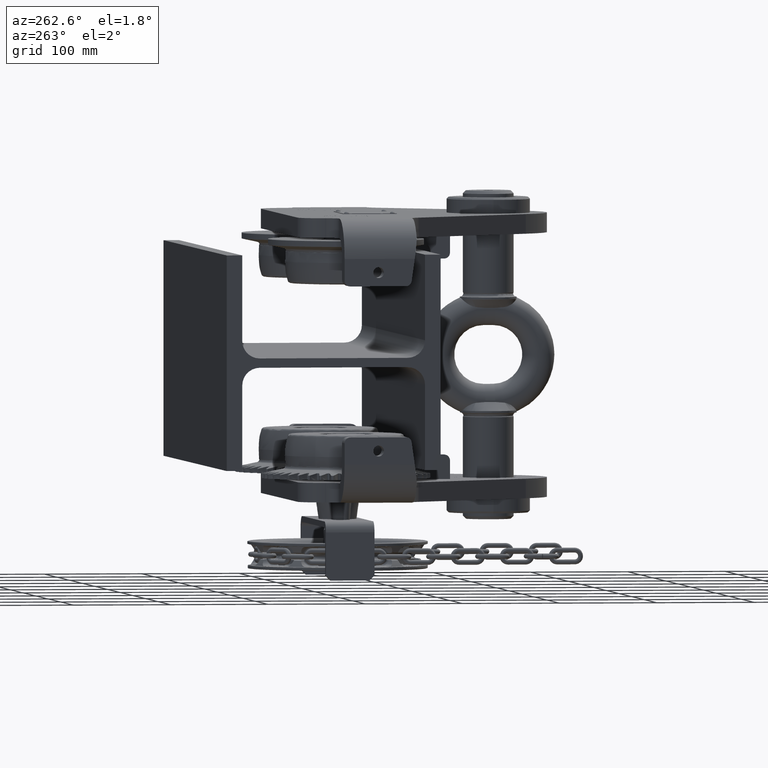
[diagram: clean part render]
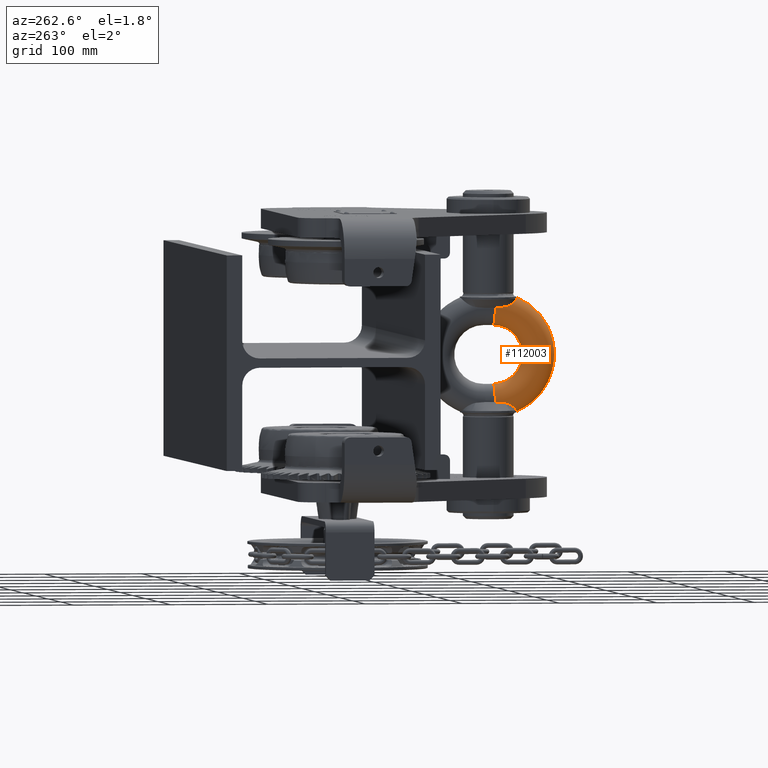
[diagram: same view with one face highlighted and labeled with its STEP entity id]
A machine part, auxiliary view. The second image highlights one B-rep face of the part: STEP entity #112003.
In plain terms, the highlighted toroidal blend (fillet) surface has major radius 46.5 mm and minor (blend) radius 16.5 mm.
Its self-contained STEP definition (entity closure, byte-faithful):
#173 = CARTESIAN_POINT ( 'NONE',  ( -0.5821584581479432000, -220.5000000000001400, 58.24946351684271000 ) ) ;
#680 = CARTESIAN_POINT ( 'NONE',  ( -16.43063562197322400, -196.5000000000006000, -48.01136132607181400 ) ) ;
#2384 = ORIENTED_EDGE ( 'NONE', *, *, #100769, .T. ) ;
#2399 = VERTEX_POINT ( 'NONE', #46834 ) ;
#3189 = CARTESIAN_POINT ( 'NONE',  ( -16.00779564519318000, -208.1510085656619300, 49.16660984428265400 ) ) ;
#3606 = CARTESIAN_POINT ( 'NONE',  ( -15.03840813540668500, -212.5426066188140600, 50.92307947960825500 ) ) ;
#3927 = DIRECTION ( 'NONE',  ( -1.000000000000000000, -2.310146638513944900E-032, 6.939431567305113600E-017 ) ) ;
#4045 = CARTESIAN_POINT ( 'NONE',  ( -11.34520208129741700, -217.4414516651685600, 54.62953950804495700 ) ) ;
#4145 = CIRCLE ( 'NONE', #35150, 16.50000000000005000 ) ;
#4387 = CARTESIAN_POINT ( 'NONE',  ( -11.86317710511406700, -217.0009010043097000, -54.22865603293384100 ) ) ;
#6174 = DIRECTION ( 'NONE',  ( -1.000000000000000000, 0.0000000000000000000, 0.0000000000000000000 ) ) ;
#12406 = CARTESIAN_POINT ( 'NONE',  ( -13.29989869337610900, -215.5356464809469200, 52.95500724111310100 ) ) ;
#12569 = CARTESIAN_POINT ( 'NONE',  ( 1.495374111465345200E-014, -220.5000000000001400, -58.24946351684270200 ) ) ;
#12696 = VERTEX_POINT ( 'NONE', #56806 ) ;
#13262 = CARTESIAN_POINT ( 'NONE',  ( -13.51089859848823400, -215.2638977733028300, 52.73977358315003300 ) ) ;
#13699 = CARTESIAN_POINT ( 'NONE',  ( -15.52368704440471700, -210.7567778237650500, 50.11044335773177500 ) ) ;
#14876 = VERTEX_POINT ( 'NONE', #103420 ) ;
#16979 = CARTESIAN_POINT ( 'NONE',  ( -6.789701822044485800, -219.6939700852458100, 57.00000000000000000 ) ) ;
#19064 = EDGE_CURVE ( 'NONE', #68748, #72155, #52696, .T. ) ;
#22254 = CARTESIAN_POINT ( 'NONE',  ( -6.789701822044441400, -219.6939700852455800, -57.00000000000000000 ) ) ;
#22447 = CARTESIAN_POINT ( 'NONE',  ( -15.76393853991888600, -209.6594500412757900, -49.66678633498646900 ) ) ;
#22523 = CARTESIAN_POINT ( 'NONE',  ( -15.61060803828187500, -210.3922853047752700, 49.95506384522681700 ) ) ;
#22886 = CARTESIAN_POINT ( 'NONE',  ( -14.08090010373160300, -214.4107620654677900, -52.11621288737713800 ) ) ;
#23211 = AXIS2_PLACEMENT_3D ( 'NONE', #109486, #86184, #127496 ) ;
#23315 = CARTESIAN_POINT ( 'NONE',  ( -15.60961632101512300, -210.3966882880849900, -49.95687587011561700 ) ) ;
#24114 = EDGE_LOOP ( 'NONE', ( #85152, #128793, #83740, #83050, #106811, #78428, #66351, #99605, #56266, #92421, #110208, #2384 ) ) ;
#25023 = B_SPLINE_CURVE_WITH_KNOTS ( 'NONE', 3,
 ( #16979, #37561, #119840, #90373, #120711, #108846, #173, #58606 ),
 .UNSPECIFIED., .F., .F.,
 ( 4, 2, 2, 4 ),
 ( 5.568977577681719900E-007, 0.003483977110263304600, 0.005225687216516072100, 0.006967397322768840500 ),
 .UNSPECIFIED. ) ;
#25474 = CARTESIAN_POINT ( 'NONE',  ( -11.32339452381547700, -217.4412280998598700, -54.63134564717977100 ) ) ;
#26168 = CARTESIAN_POINT ( 'NONE',  ( -16.43063562197322400, -196.4999999999986100, 48.01136132607174300 ) ) ;
#26193 = EDGE_CURVE ( 'NONE', #2399, #45689, #94301, .T. ) ;
#27011 = CARTESIAN_POINT ( 'NONE',  ( -16.41022114154714000, -199.8710428577474000, 48.15709499626945000 ) ) ;
#27300 = B_SPLINE_CURVE_WITH_KNOTS ( 'NONE', 3,
 ( #22254, #53412, #124746, #44149, #32341, #102733, #33650, #12569 ),
 .UNSPECIFIED., .F., .F.,
 ( 4, 2, 2, 4 ),
 ( 5.568977577853012200E-007, 0.003483977110263313300, 0.005225687216516077300, 0.006967397322768841300 ),
 .UNSPECIFIED. ) ;
#29697 = CARTESIAN_POINT ( 'NONE',  ( -16.33325860116089200, -203.2304775282663600, -48.42271561141749500 ) ) ;
#30154 = CARTESIAN_POINT ( 'NONE',  ( -16.49999999999998200, -196.5000000000005700, -46.49999999999995700 ) ) ;
#32341 = CARTESIAN_POINT ( 'NONE',  ( -2.337159246426784100, -220.4115896409631100, -58.11736992380962600 ) ) ;
#32347 = VERTEX_POINT ( 'NONE', #30154 ) ;
#32548 = CARTESIAN_POINT ( 'NONE',  ( -15.23141514536809600, -211.8315885877947300, -50.59971117742651400 ) ) ;
#33650 = CARTESIAN_POINT ( 'NONE',  ( -0.5821584581479497500, -220.5000000000001400, -58.24946351684271000 ) ) ;
#33833 = CARTESIAN_POINT ( 'NONE',  ( -13.30570346881362200, -215.5580710833979500, -52.95966035064175500 ) ) ;
#33922 = CARTESIAN_POINT ( 'NONE',  ( -7.530738171597023200, -219.5203600067262100, 56.70943172050236600 ) ) ;
#35150 = AXIS2_PLACEMENT_3D ( 'NONE', #64577, #96306, #6174 ) ;
#36246 = CARTESIAN_POINT ( 'NONE',  ( -16.42524475720241000, -198.1868489510144400, 48.06996765217578400 ) ) ;
#37561 = CARTESIAN_POINT ( 'NONE',  ( -5.718996009394124300, -219.9518185962942600, 57.41698542281729800 ) ) ;
#39327 = CIRCLE ( 'NONE', #83071, 16.50000000000005000 ) ;
#39612 = CARTESIAN_POINT ( 'NONE',  ( -16.14970968157153700, -206.5730623694666400, -48.85419018527897400 ) ) ;
#39718 = DIRECTION ( 'NONE',  ( 1.932206904482438600E-030, -1.000000000000000000, 2.823226364095309500E-014 ) ) ;
#40998 = AXIS2_PLACEMENT_3D ( 'NONE', #108992, #119141, #79047 ) ;
#42617 = CARTESIAN_POINT ( 'NONE',  ( -14.57284169700258800, -213.4847800982709600, -51.51764444182781900 ) ) ;
#43126 = CARTESIAN_POINT ( 'NONE',  ( -10.47097514471098400, -218.0534991549015200, 55.19895987007703300 ) ) ;
#44149 = CARTESIAN_POINT ( 'NONE',  ( -2.912825082084844000, -220.3590081516810000, -58.03848569479153200 ) ) ;
#44301 = CARTESIAN_POINT ( 'NONE',  ( 1.899592276590135800E-014, -196.4999999999999100, 2.774178518932936600E-016 ) ) ;
#44422 = CARTESIAN_POINT ( 'NONE',  ( -12.62039186310732900, -216.2968772376511600, 53.59638425016683500 ) ) ;
#44769 = CARTESIAN_POINT ( 'NONE',  ( -12.12155273087836000, -216.7740795402925500, -54.02184071569087800 ) ) ;
#45689 = VERTEX_POINT ( 'NONE', #122691 ) ;
#45854 = CARTESIAN_POINT ( 'NONE',  ( -16.49999999999997900, -196.4999999999986100, 46.50000000000004300 ) ) ;
#45900 = CARTESIAN_POINT ( 'NONE',  ( -16.33325860116091000, -203.2304775282658200, 48.42271561141743100 ) ) ;
#46834 = CARTESIAN_POINT ( 'NONE',  ( -16.14970968157152600, -206.5730623694666400, 48.85419018527897400 ) ) ;
#47792 = VERTEX_POINT ( 'NONE', #97363 ) ;
#50396 = VERTEX_POINT ( 'NONE', #72330 ) ;
#51427 = CARTESIAN_POINT ( 'NONE',  ( -13.89661665512558900, -214.7083405397440900, -52.32551736131427600 ) ) ;
#52696 = CIRCLE ( 'NONE', #94898, 16.50000000000005000 ) ;
#53412 = CARTESIAN_POINT ( 'NONE',  ( -5.718996009394120800, -219.9518185962942600, -57.41698542281731900 ) ) ;
#54042 = CARTESIAN_POINT ( 'NONE',  ( -8.226983262885909200, -219.2627356857552700, -56.40426757459346900 ) ) ;
#54117 = CARTESIAN_POINT ( 'NONE',  ( -8.228052558569460800, -219.2625594879942000, 56.40392126491671800 ) ) ;
#54458 = EDGE_CURVE ( 'NONE', #123674, #95460, #27300, .T. ) ;
#55196 = CARTESIAN_POINT ( 'NONE',  ( -16.14970968157152600, -206.5730623694666400, 48.85419018527897400 ) ) ;
#55348 = CARTESIAN_POINT ( 'NONE',  ( -6.789701822044441400, -219.6939700852455800, -57.00000000000000000 ) ) ;
#56041 = AXIS2_PLACEMENT_3D ( 'NONE', #44301, #3927, #86129 ) ;
#56266 = ORIENTED_EDGE ( 'NONE', *, *, #84987, .F. ) ;
#56279 = TOROIDAL_SURFACE ( 'NONE', #123380, 46.50000000000000000, 16.50000000000000000 ) ;
#56418 = B_SPLINE_CURVE_WITH_KNOTS ( 'NONE', 3,
 ( #39612, #82258, #73396, #83584, #22447, #23315, #101644, #32548, #102926, #42617, #123215, #22886, #51427, #33833, #104635, #44769, #4387, #25474, #75574, #94096, #124936, #54042, #94529, #55348 ),
 .UNSPECIFIED., .F., .F.,
 ( 4, 2, 2, 2, 2, 2, 2, 2, 2, 2, 2, 4 ),
 ( 0.0000000000000000000, 0.002409449002536054000, 0.003614173503804082300, 0.004818898005072110500, 0.007228347007608167100, 0.008433071508876165500, 0.009637796010144165600, 0.01204724501268010500, 0.01325196951394807200, 0.01445669401521603900, 0.01686614301775197000, 0.01927559202028789700 ),
 .UNSPECIFIED. ) ;
#56806 = CARTESIAN_POINT ( 'NONE',  ( 2.303810443280035300E-014, -220.5000000000001400, 58.24946351684270200 ) ) ;
#57362 = CARTESIAN_POINT ( 'NONE',  ( 1.495374111465345200E-014, -220.5000000000001400, -58.24946351684270200 ) ) ;
#58606 = CARTESIAN_POINT ( 'NONE',  ( 2.303810443280035300E-014, -220.5000000000001400, 58.24946351684270200 ) ) ;
#59462 = CARTESIAN_POINT ( 'NONE',  ( 2.222275844469823600E-014, -196.4999999999986100, 46.50000000000000000 ) ) ;
#63646 = B_SPLINE_CURVE_WITH_KNOTS ( 'NONE', 3,
 ( #103431, #33922, #54117, #73905, #64161, #72587, #43126, #4045, #94604, #44422, #104717, #12406, #13262, #83660, #3606, #13699, #22523, #113597, #123718, #3189, #73458, #66328 ),
 .UNSPECIFIED., .F., .F.,
 ( 4, 2, 2, 2, 2, 2, 2, 2, 2, 2, 4 ),
 ( 4.526930341246198900E-017, 0.002407351298757833900, 0.003611026948136721700, 0.004814702597515609600, 0.007222053896273385300, 0.008425729545652275000, 0.009629405195031165400, 0.01444410779254671900, 0.01564778344192559200, 0.01685145909130446300, 0.01925881039006228600 ),
 .UNSPECIFIED. ) ;
#64161 = CARTESIAN_POINT ( 'NONE',  ( -9.541050357058077600, -218.6182330936537100, 55.73941017199112500 ) ) ;
#64221 = EDGE_CURVE ( 'NONE', #47792, #12696, #25023, .T. ) ;
#64577 = CARTESIAN_POINT ( 'NONE',  ( 1.576908708710450200E-014, -196.5000000000005700, -46.50000000000000000 ) ) ;
#66328 = CARTESIAN_POINT ( 'NONE',  ( -16.14970968157152600, -206.5730623694666400, 48.85419018527897400 ) ) ;
#66351 = ORIENTED_EDGE ( 'NONE', *, *, #19064, .T. ) ;
#68748 = VERTEX_POINT ( 'NONE', #45854 ) ;
#70945 = CARTESIAN_POINT ( 'NONE',  ( -16.14970968157153700, -206.5730623694666400, -48.85419018527897400 ) ) ;
#72155 = VERTEX_POINT ( 'NONE', #98378 ) ;
#72330 = CARTESIAN_POINT ( 'NONE',  ( -16.43063562197322400, -196.5000000000006000, -48.01136132607181400 ) ) ;
#72587 = CARTESIAN_POINT ( 'NONE',  ( -10.16649636255472800, -218.2501418079608300, 55.38407336389799700 ) ) ;
#72721 = CIRCLE ( 'NONE', #40998, 16.50000000000005000 ) ;
#73396 = CARTESIAN_POINT ( 'NONE',  ( -16.00775697945098800, -208.1516179651797000, -49.16671881102166000 ) ) ;
#73458 = CARTESIAN_POINT ( 'NONE',  ( -16.09073587124082400, -207.3741779715416800, 48.97655950601014800 ) ) ;
#73905 = CARTESIAN_POINT ( 'NONE',  ( -9.219653869752162800, -218.7901185588438600, 55.91003089512496900 ) ) ;
#75574 = CARTESIAN_POINT ( 'NONE',  ( -11.04097899882743400, -217.6549622679522700, -54.82810784448078300 ) ) ;
#78428 = ORIENTED_EDGE ( 'NONE', *, *, #119102, .T. ) ;
#79047 = DIRECTION ( 'NONE',  ( -1.000000000000000000, 0.0000000000000000000, 0.0000000000000000000 ) ) ;
#80731 = CARTESIAN_POINT ( 'NONE',  ( -16.27217791761420400, -204.9057744790298700, -48.60082342732091100 ) ) ;
#81895 = EDGE_CURVE ( 'NONE', #50396, #32347, #72721, .T. ) ;
#82258 = CARTESIAN_POINT ( 'NONE',  ( -16.09073594290875800, -207.3741769979857000, -48.97655935730081500 ) ) ;
#83050 = ORIENTED_EDGE ( 'NONE', *, *, #87918, .T. ) ;
#83071 = AXIS2_PLACEMENT_3D ( 'NONE', #59462, #39718, #89926 ) ;
#83584 = CARTESIAN_POINT ( 'NONE',  ( -15.83134933537296600, -209.2863289760058800, -49.53205681885101800 ) ) ;
#83660 = CARTESIAN_POINT ( 'NONE',  ( -14.49674230936782800, -213.8416792911703500, 51.68017325012470300 ) ) ;
#83740 = ORIENTED_EDGE ( 'NONE', *, *, #64221, .F. ) ;
#84717 = CARTESIAN_POINT ( 'NONE',  ( 1.899592276590135800E-014, -196.4999999999999100, 2.774178518932936600E-016 ) ) ;
#84987 = EDGE_CURVE ( 'NONE', #32347, #123648, #4145, .T. ) ;
#85152 = ORIENTED_EDGE ( 'NONE', *, *, #54458, .T. ) ;
#85768 = DIRECTION ( 'NONE',  ( -1.000000000000000000, 0.0000000000000000000, 0.0000000000000000000 ) ) ;
#86129 = DIRECTION ( 'NONE',  ( 6.939431567305117300E-017, 0.0000000000000000000, 1.000000000000000000 ) ) ;
#86184 = DIRECTION ( 'NONE',  ( -1.000000000000000000, -2.310146638513944900E-032, 6.939431567305113600E-017 ) ) ;
#87918 = EDGE_CURVE ( 'NONE', #47792, #2399, #63646, .T. ) ;
#89892 = CIRCLE ( 'NONE', #56041, 63.00000000000000000 ) ;
#89926 = DIRECTION ( 'NONE',  ( -1.000000000000000000, 0.0000000000000000000, 0.0000000000000000000 ) ) ;
#90023 = CARTESIAN_POINT ( 'NONE',  ( -16.42524475720240700, -198.1868489510161500, -48.06996765217583300 ) ) ;
#90373 = CARTESIAN_POINT ( 'NONE',  ( -2.912825082084844900, -220.3590081516810000, 58.03848569479152500 ) ) ;
#92421 = ORIENTED_EDGE ( 'NONE', *, *, #81895, .F. ) ;
#94096 = CARTESIAN_POINT ( 'NONE',  ( -10.16253130831772300, -218.2683548030102000, -55.39900076942996100 ) ) ;
#94301 = B_SPLINE_CURVE_WITH_KNOTS ( 'NONE', 3,
 ( #55196, #125622, #45900, #27011, #36246, #26168 ),
 .UNSPECIFIED., .F., .F.,
 ( 4, 2, 4 ),
 ( 0.0000000000000000000, 0.005056082113877703200, 0.01011216422775540600 ),
 .UNSPECIFIED. ) ;
#94529 = CARTESIAN_POINT ( 'NONE',  ( -7.531583063176295700, -219.5201620654328600, -56.70910042947637900 ) ) ;
#94604 = CARTESIAN_POINT ( 'NONE',  ( -11.88198488525440800, -217.0037736557662500, 54.22649970755973900 ) ) ;
#94898 = AXIS2_PLACEMENT_3D ( 'NONE', #115684, #114810, #85768 ) ;
#94996 = EDGE_CURVE ( 'NONE', #123648, #72155, #124806, .T. ) ;
#95460 = VERTEX_POINT ( 'NONE', #57362 ) ;
#96306 = DIRECTION ( 'NONE',  ( -9.545527190486497700E-031, 1.000000000000000000, -1.414387360566586700E-014 ) ) ;
#97216 = FACE_OUTER_BOUND ( 'NONE', #24114, .T. ) ;
#97363 = CARTESIAN_POINT ( 'NONE',  ( -6.789701822044485800, -219.6939700852458100, 57.00000000000000000 ) ) ;
#98378 = CARTESIAN_POINT ( 'NONE',  ( 2.101658998449450000E-014, -196.4999999999990900, 30.00000000000000000 ) ) ;
#98707 = CARTESIAN_POINT ( 'NONE',  ( -6.789701822044441400, -219.6939700852455800, -57.00000000000000000 ) ) ;
#99605 = ORIENTED_EDGE ( 'NONE', *, *, #94996, .F. ) ;
#99667 = CARTESIAN_POINT ( 'NONE',  ( -16.41022114154713300, -199.8710428577487600, -48.15709499626954900 ) ) ;
#100734 = B_SPLINE_CURVE_WITH_KNOTS ( 'NONE', 3,
 ( #680, #90023, #99667, #29697, #80731, #70945 ),
 .UNSPECIFIED., .F., .F.,
 ( 4, 2, 4 ),
 ( 0.0000000000000000000, 0.005056082113876717900, 0.01011216422775343600 ),
 .UNSPECIFIED. ) ;
#100769 = EDGE_CURVE ( 'NONE', #14876, #123674, #56418, .T. ) ;
#101644 = CARTESIAN_POINT ( 'NONE',  ( -15.52239812837067700, -210.7618931237415400, -50.11268272700753100 ) ) ;
#102733 = CARTESIAN_POINT ( 'NONE',  ( -1.169121845982864700, -220.4823305312021100, -58.22322194431578200 ) ) ;
#102926 = CARTESIAN_POINT ( 'NONE',  ( -14.99815633690422300, -212.5137042511241200, -50.95146419734150800 ) ) ;
#103420 = CARTESIAN_POINT ( 'NONE',  ( -16.14970968157153700, -206.5730623694666400, -48.85419018527897400 ) ) ;
#103431 = CARTESIAN_POINT ( 'NONE',  ( -6.789701822044485800, -219.6939700852458100, 57.00000000000000000 ) ) ;
#103990 = EDGE_CURVE ( 'NONE', #50396, #14876, #100734, .T. ) ;
#104635 = CARTESIAN_POINT ( 'NONE',  ( -12.86108947759749400, -216.0671371026021200, -53.39142813885421600 ) ) ;
#104717 = CARTESIAN_POINT ( 'NONE',  ( -12.85498062700981800, -216.0516255899330500, 53.38296045857281100 ) ) ;
#106811 = ORIENTED_EDGE ( 'NONE', *, *, #26193, .T. ) ;
#107067 = DIRECTION ( 'NONE',  ( -6.939431567305113600E-017, 5.649753126399392400E-064, -1.000000000000000000 ) ) ;
#107501 = CARTESIAN_POINT ( 'NONE',  ( 2.101658998449448200E-014, -196.5000000000003400, -30.00000000000000000 ) ) ;
#107942 = DIRECTION ( 'NONE',  ( -1.000000000000000000, -2.310146638513944900E-032, 6.939431567305113600E-017 ) ) ;
#108846 = CARTESIAN_POINT ( 'NONE',  ( -1.169121845982864500, -220.4823305312021100, 58.22322194431578200 ) ) ;
#108992 = CARTESIAN_POINT ( 'NONE',  ( 1.576908708710450200E-014, -196.5000000000005700, -46.50000000000000000 ) ) ;
#109486 = CARTESIAN_POINT ( 'NONE',  ( 2.101658998449449700E-014, -196.4999999999999100, 2.774178518932935100E-016 ) ) ;
#110208 = ORIENTED_EDGE ( 'NONE', *, *, #103990, .T. ) ;
#112003 = ADVANCED_FACE ( 'NONE', ( #97216 ), #56279, .T. ) ;
#113597 = CARTESIAN_POINT ( 'NONE',  ( -15.76447316238308000, -209.6565579584139100, 49.66572867952373800 ) ) ;
#114810 = DIRECTION ( 'NONE',  ( 1.932206904482438600E-030, -1.000000000000000000, 2.823226364095309500E-014 ) ) ;
#115684 = CARTESIAN_POINT ( 'NONE',  ( 2.222275844469823600E-014, -196.4999999999986100, 46.50000000000000000 ) ) ;
#119102 = EDGE_CURVE ( 'NONE', #45689, #68748, #39327, .T. ) ;
#119141 = DIRECTION ( 'NONE',  ( -9.545527190486497700E-031, 1.000000000000000000, -1.414387360566586700E-014 ) ) ;
#119840 = CARTESIAN_POINT ( 'NONE',  ( -4.615686157747743900, -220.1531507364128400, 57.72578106997545400 ) ) ;
#120711 = CARTESIAN_POINT ( 'NONE',  ( -2.337159246426785000, -220.4115896409631100, 58.11736992380962600 ) ) ;
#122691 = CARTESIAN_POINT ( 'NONE',  ( -16.43063562197322400, -196.4999999999986100, 48.01136132607174300 ) ) ;
#123215 = CARTESIAN_POINT ( 'NONE',  ( -14.41843490700063600, -213.7997126900800100, -51.71288681910626700 ) ) ;
#123380 = AXIS2_PLACEMENT_3D ( 'NONE', #84717, #107942, #107067 ) ;
#123648 = VERTEX_POINT ( 'NONE', #107501 ) ;
#123674 = VERTEX_POINT ( 'NONE', #98707 ) ;
#123718 = CARTESIAN_POINT ( 'NONE',  ( -15.83172462128891800, -209.2840947546192800, 49.53129400317466500 ) ) ;
#124746 = CARTESIAN_POINT ( 'NONE',  ( -4.615686157747740400, -220.1531507364128400, -57.72578106997545400 ) ) ;
#124806 = CIRCLE ( 'NONE', #23211, 30.00000000000000000 ) ;
#124936 = CARTESIAN_POINT ( 'NONE',  ( -9.542474760975405700, -218.6366440345709100, -55.74942739138107600 ) ) ;
#125622 = CARTESIAN_POINT ( 'NONE',  ( -16.27217791761418300, -204.9057744790295300, 48.60082342732085400 ) ) ;
#127496 = DIRECTION ( 'NONE',  ( 6.939431567305109900E-017, 0.0000000000000000000, 1.000000000000000000 ) ) ;
#128793 = ORIENTED_EDGE ( 'NONE', *, *, #129441, .T. ) ;
#129441 = EDGE_CURVE ( 'NONE', #95460, #12696, #89892, .T. ) ;